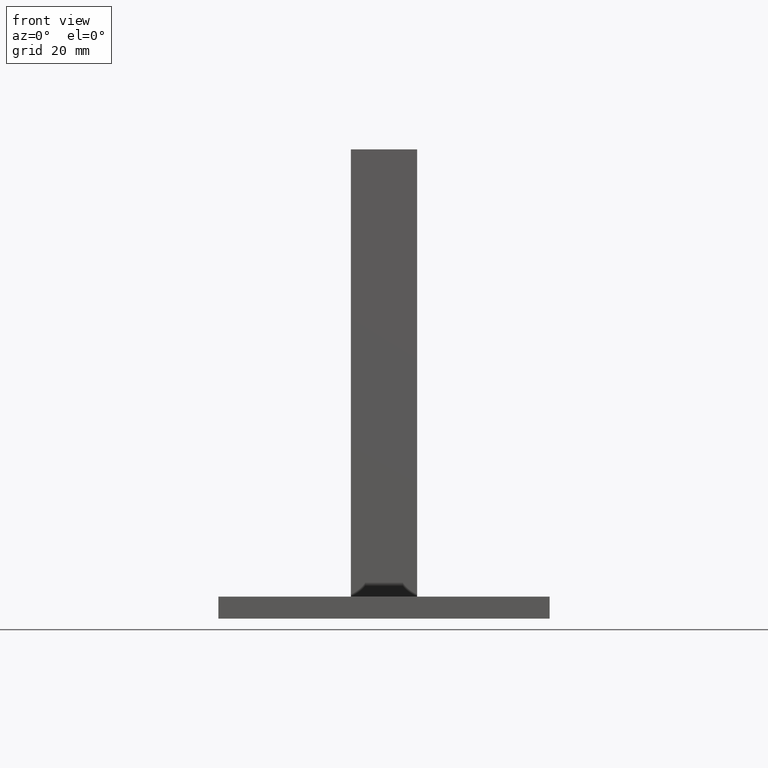
[diagram: clean part render]
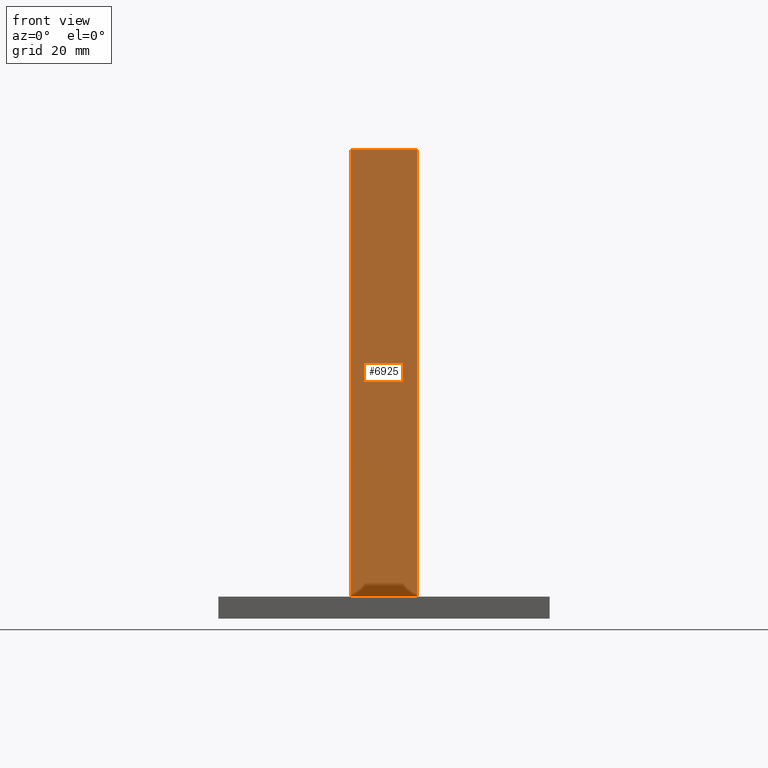
[diagram: same view with one face highlighted and labeled with its STEP entity id]
A machine part, front view. The second image highlights one B-rep face of the part: STEP entity #6925.
In plain terms, the highlighted planar face has unit normal (0, 1, 0).
Its self-contained STEP definition (entity closure, byte-faithful):
#334 = EDGE_CURVE ( 'NONE', #6785, #4271, #9465, .T. ) ;
#389 = VECTOR ( 'NONE', #2924, 1000.000000000000000 ) ;
#412 = ORIENTED_EDGE ( 'NONE', *, *, #334, .F. ) ;
#616 = EDGE_CURVE ( 'NONE', #3784, #6785, #8304, .T. ) ;
#1185 = VECTOR ( 'NONE', #8231, 1000.000000000000000 ) ;
#1337 = ORIENTED_EDGE ( 'NONE', *, *, #9113, .T. ) ;
#1477 = DIRECTION ( 'NONE',  ( 1.000000000000000000, 0.000000000000000000, 0.000000000000000000 ) ) ;
#1873 = CARTESIAN_POINT ( 'NONE',  ( -6.000000000000001776, -6.000000000000002665, 4.000000000000000000 ) ) ;
#2084 = CARTESIAN_POINT ( 'NONE',  ( 0.000000000000000000, -6.000000000000002665, 4.000000000000000000 ) ) ;
#2514 = LINE ( 'NONE', #3702, #8490 ) ;
#2629 = CARTESIAN_POINT ( 'NONE',  ( -6.000000000000001776, -6.000000000000014211, 85.00000000000000000 ) ) ;
#2871 = AXIS2_PLACEMENT_3D ( 'NONE', #9520, #8775, #3610 ) ;
#2924 = DIRECTION ( 'NONE',  ( -1.000000000000000000, 0.000000000000000000, -0.000000000000000000 ) ) ;
#3025 = DIRECTION ( 'NONE',  ( 0.000000000000000000, -1.224646799147353207E-16, 1.000000000000000000 ) ) ;
#3101 = CARTESIAN_POINT ( 'NONE',  ( -6.000000000000001776, -6.000000000000001776, 0.000000000000000000 ) ) ;
#3610 = DIRECTION ( 'NONE',  ( 0.000000000000000000, -1.224646799147353207E-16, 1.000000000000000000 ) ) ;
#3702 = CARTESIAN_POINT ( 'NONE',  ( 5.999999999999998224, -6.000000000000012434, 85.00000000000000000 ) ) ;
#3784 = VERTEX_POINT ( 'NONE', #6316 ) ;
#4271 = VERTEX_POINT ( 'NONE', #2629 ) ;
#5870 = EDGE_LOOP ( 'NONE', ( #6935, #1337, #6511, #412 ) ) ;
#6316 = CARTESIAN_POINT ( 'NONE',  ( 5.999999999999998224, -6.000000000000012434, 4.000000000000000000 ) ) ;
#6511 = ORIENTED_EDGE ( 'NONE', *, *, #7080, .F. ) ;
#6538 = FACE_OUTER_BOUND ( 'NONE', #5870, .T. ) ;
#6560 = PLANE ( 'NONE',  #2871 ) ;
#6785 = VERTEX_POINT ( 'NONE', #1873 ) ;
#6925 = ADVANCED_FACE ( 'NONE', ( #6538 ), #6560, .F. ) ;
#6935 = ORIENTED_EDGE ( 'NONE', *, *, #616, .F. ) ;
#7080 = EDGE_CURVE ( 'NONE', #4271, #7265, #2514, .T. ) ;
#7265 = VERTEX_POINT ( 'NONE', #8480 ) ;
#7670 = VECTOR ( 'NONE', #3025, 1000.000000000000000 ) ;
#8231 = DIRECTION ( 'NONE',  ( 0.000000000000000000, -1.224646799147353207E-16, 1.000000000000000000 ) ) ;
#8248 = CARTESIAN_POINT ( 'NONE',  ( 5.999999999999998224, -6.000000000000001776, 0.000000000000000000 ) ) ;
#8304 = LINE ( 'NONE', #2084, #389 ) ;
#8480 = CARTESIAN_POINT ( 'NONE',  ( 5.999999999999998224, -6.000000000000019540, 84.99999999999998579 ) ) ;
#8490 = VECTOR ( 'NONE', #1477, 1000.000000000000000 ) ;
#8775 = DIRECTION ( 'NONE',  ( 0.000000000000000000, 1.000000000000000000, 1.224646799147353207E-16 ) ) ;
#9067 = LINE ( 'NONE', #8248, #7670 ) ;
#9113 = EDGE_CURVE ( 'NONE', #3784, #7265, #9067, .T. ) ;
#9465 = LINE ( 'NONE', #3101, #1185 ) ;
#9520 = CARTESIAN_POINT ( 'NONE',  ( 5.999999999999998224, -6.000000000000001776, 0.000000000000000000 ) ) ;